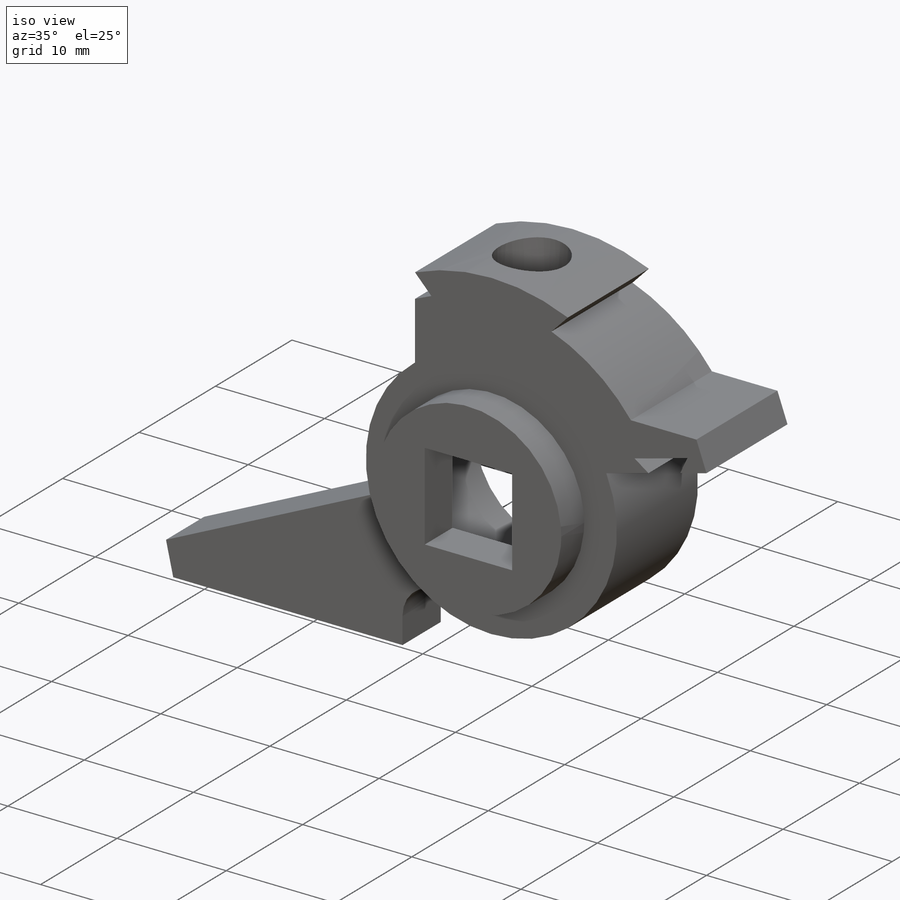
[diagram: iso view]
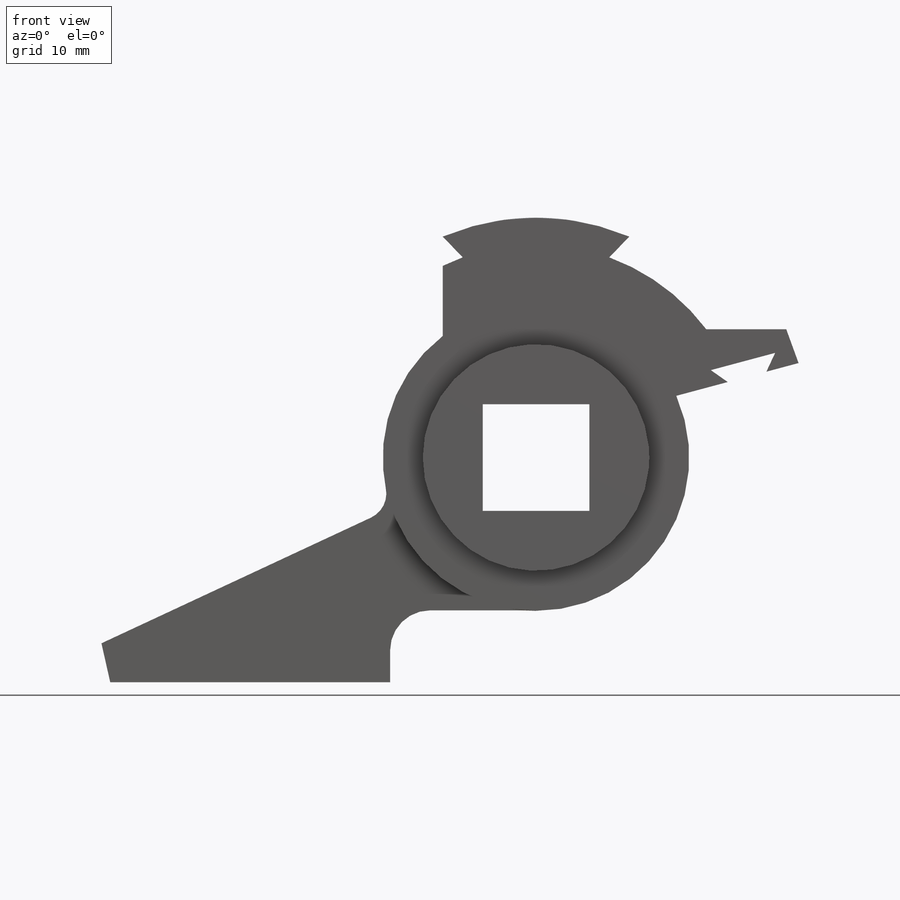
[diagram: front view]
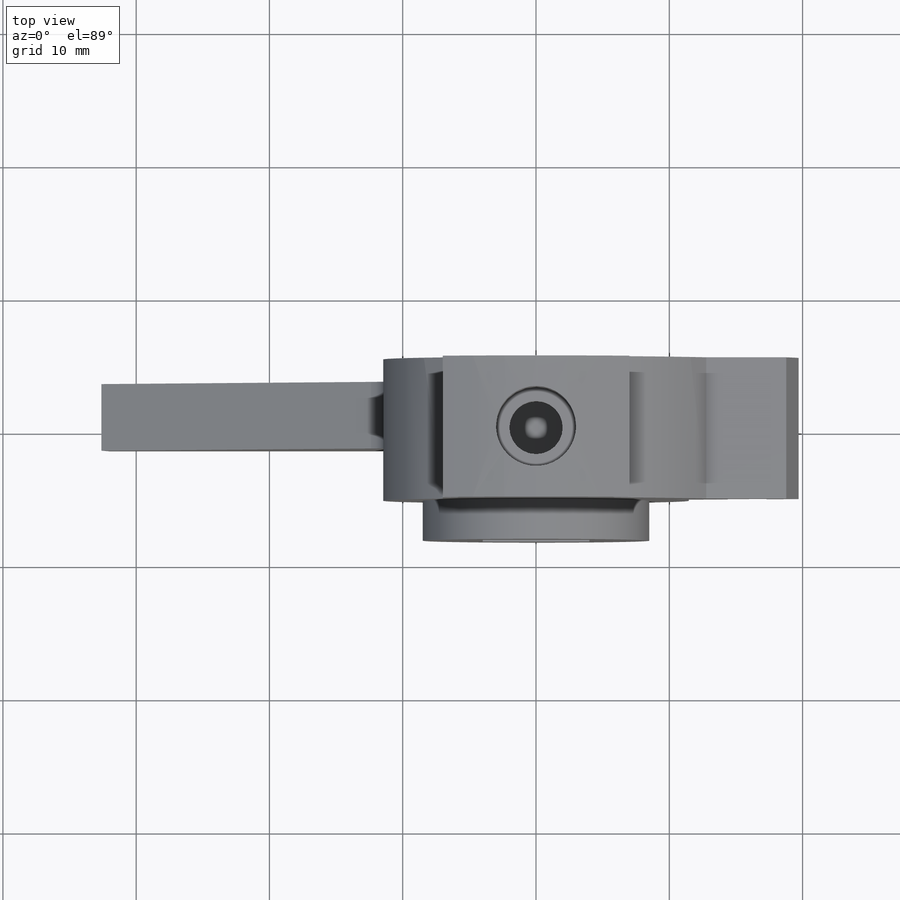
[diagram: top view]
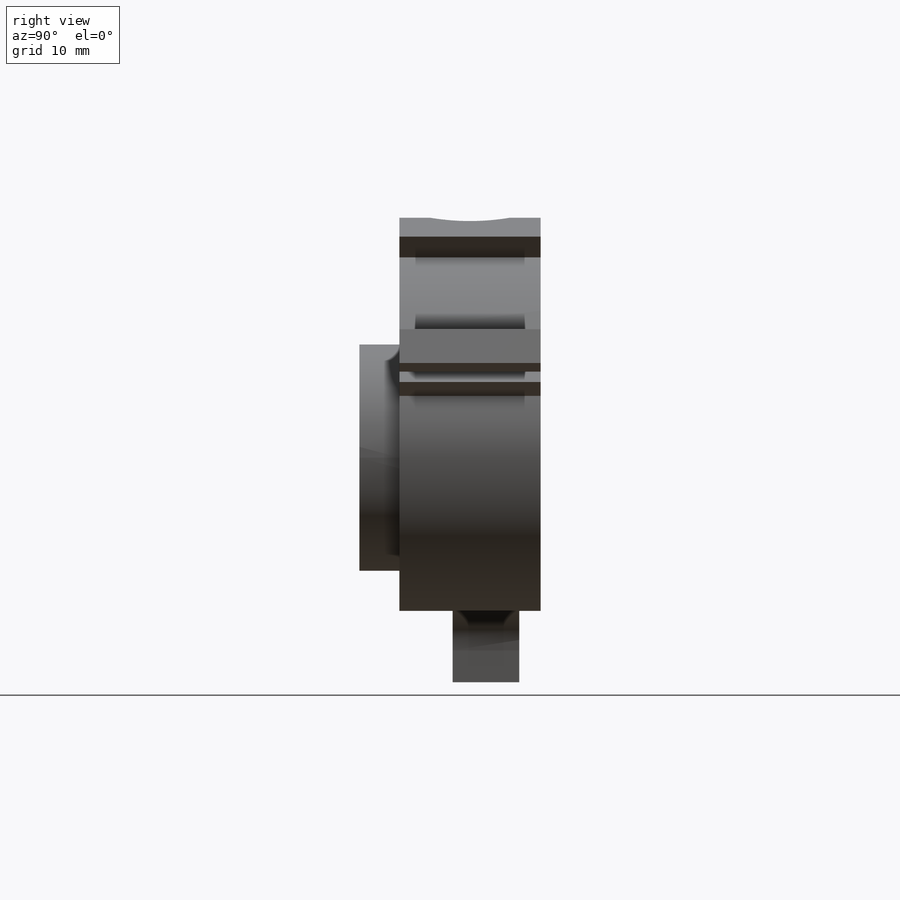
[diagram: right view]
SOLIDWORKS PART (.sldprt)
format: sldprt  version: not decoded by parser v0  size: 253,952 bytes
history: native  units: mm
features: sketch x8, plane x5, cut_extrude x5, extrude x3, fillet x2, material x1 (+12 scaffold rows collapsed)
feature tree (36):
  scaffold x12  (default folders/planes/origin — collapsed)
  material  "Matériau <non spécifié>"
  plane  "Face"
  plane  "Dessus"
  plane  "Droite"
  sketch  "Esquisse1"  dims[c1.D1=23.0mm c1.D2=36.0mm c1.D4=32.0mm c1.D10=18.0mm c2.D2=18.0mm c2.D3=7.0mm c2.D5=1.5mm c2.D6=~15.024979mm c3.D6=40.0deg c3.D7=6.0mm c3.D8=6.0mm c4.D8=110.0deg c4.D9=4.0mm c4.D10=~26.586997mm c5.D10=15.0deg c5.D9=2.0mm c5.D11=2.5mm c5.D12=3.0mm c5.D13=5.0mm c5.D14=1.0mm c5.D15=~1.173306mm c6.D14=1.0mm c6.D15=~5.479071mm c6.D9=1.0mm c6.D11=~2.162826mm c7.D14=~2.338502mm c8.D14=50.0deg c8.D15=~2.077389mm c9.D15=~76.22485deg c9.D9=1.0mm c10.D9=50.0deg c10.D15=4.0mm c10.D16=2.5mm c10.D6=~21.772856mm c11.D6=~53.058309deg c12.D6=~16.372311mm c13.D6=53.0deg]
  extrude  "Extrusion1"  Depth=10.6mm
  sketch  "Esquisse2"  dims[D1=17.0mm]
  extrude  "Extrusion2"  Depth=3mm
  plane  "Plan1"  Offset=4mm
  sketch  "Esquisse3"  dims[c1.D6=8.5mm c1.D8=23.0mm c1.D1=15.4843mm c2.D1=25.0deg c2.D2=10.0mm c2.D3=21.0mm c2.D4=6.0mm c2.D5=25.0mm c2.D7=~2.770125mm c3.D7=~112.198622deg c4.D7=3.0mm c4.D2=10.0mm c4.D4=24.0mm c4.D5=5.4mm c4.D6=~0.946558mm c4.D9=~10.856824mm c4.D10=~32.608211mm c5.D6=~0.946558mm]
  extrude  "Extrusion3"  Depth=5mm
  sketch  "Esquisse4"  dims[D1=20.0mm]
  cut_extrude  "Enlèv. mat.-Extru.1"  Depth=2mm
  sketch  "Esquisse5"  dims[D1=15.0mm]
  cut_extrude  "Enlèv. mat.-Extru.2"  Depth=8mm
  sketch  "Esquisse6"  dims[D1=8.0mm D2=8.0mm]
  cut_extrude  "Enlèv. mat.-Extru.3"  [1 undecoded]
  plane  "Plan2"  Offset=18mm
  sketch  "Esquisse9"  dims[c1.D1=6.0mm c1.D2=3.5mm c1.D3=3.5mm c2.D2=14.0mm]
  cut_extrude  "Enlèv. mat.-Extru.5"  Depth=7mm
  sketch  "Esquisse8"  dims[D1=4.0mm]
  cut_extrude  "Enlèv. mat.-Extru.4"  [1 undecoded]
  fillet  "Congé2"  Radius=3mm
  fillet  "Congé3"  Radius=2mm
decode coverage: 16 of 18 modeling features carry decoded parameters
note: ~ marks probable driven/reference dimensions
note: 2 parameter values undecoded
note: suppression state not decoded; provenance and decode notes live in map.json
